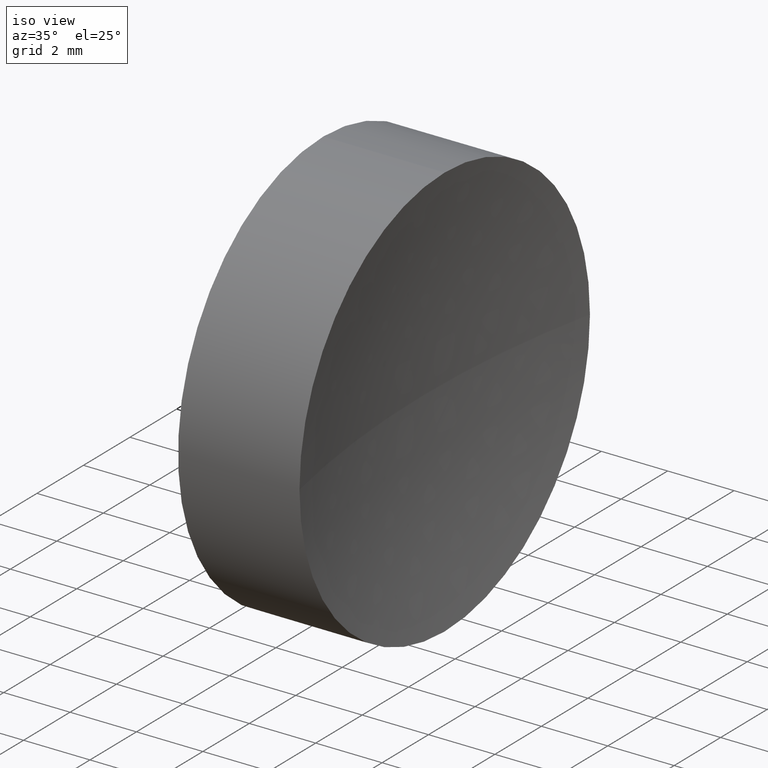
[diagram: clean part render]
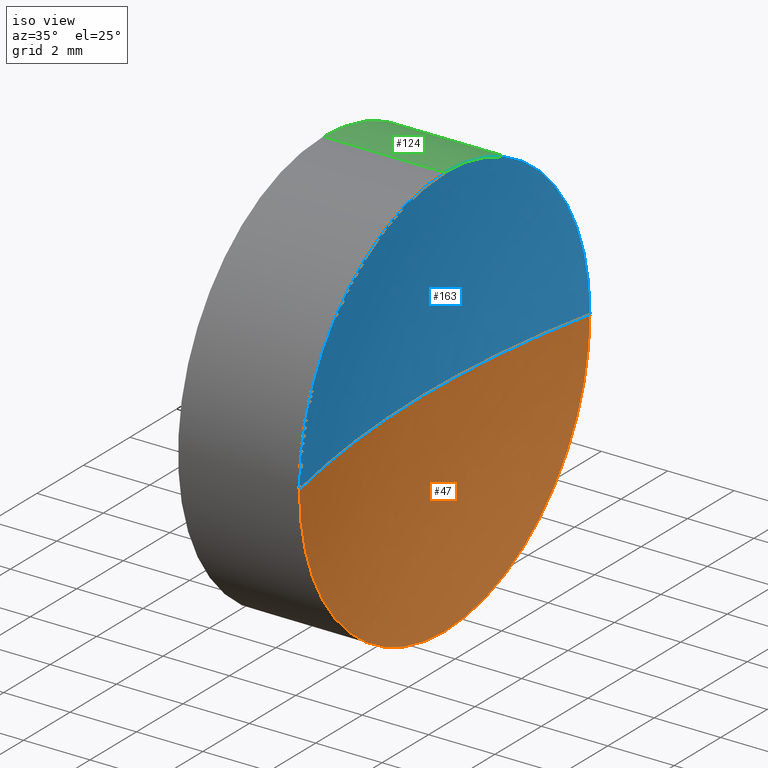
[diagram: same view with three faces highlighted in distinct colors, each labeled with its STEP entity id]
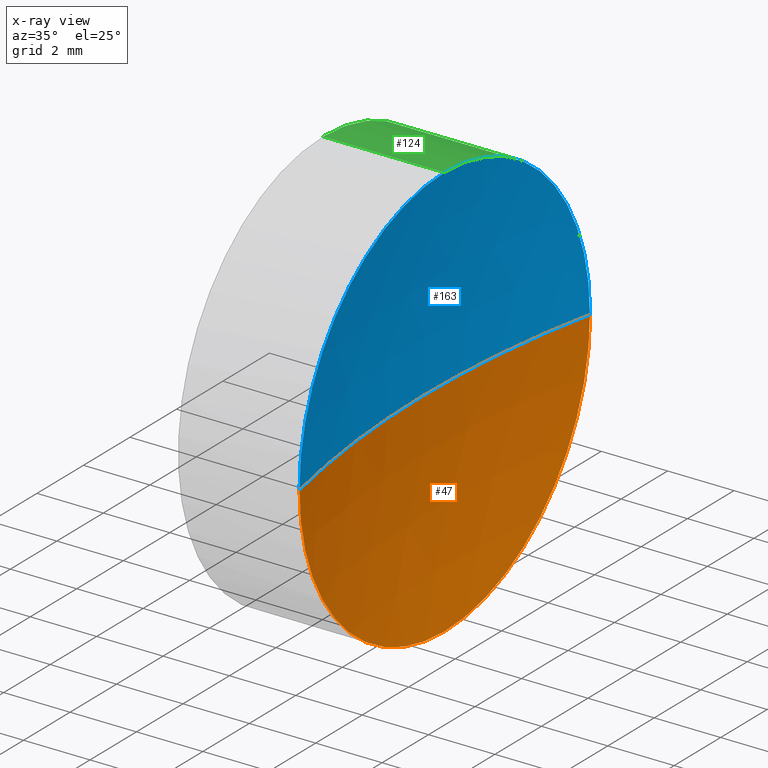
[diagram: x-ray of the same camera — body ghosted, the three highlighted faces saturated]
A machine part, iso view with three faces highlighted in distinct colors.
The next image is the same camera in x-ray (body ghosted, the three faces saturated) — at least one of them is partly hidden behind the body in this view.
Their STEP definitions:

[orange] entity #47 — the highlighted spherical surface has radius 30 mm.
#1 = CIRCLE ( 'NONE', #150, 30.00000000000000000 ) ;
#9 = EDGE_LOOP ( 'NONE', ( #41, #116, #111, #100 ) ) ;
#10 = CARTESIAN_POINT ( 'NONE',  ( 61.20459128169575500, 34.68901056168621700, 0.0000000000000000000 ) ) ;
#13 = DIRECTION ( 'NONE',  ( 0.0000000000000000000, 0.0000000000000000000, 1.000000000000000000 ) ) ;
#17 = VERTEX_POINT ( 'NONE', #120 ) ;
#19 = EDGE_CURVE ( 'NONE', #172, #46, #179, .T. ) ;
#20 = CIRCLE ( 'NONE', #141, 6.250000000000005300 ) ;
#24 = EDGE_CURVE ( 'NONE', #17, #136, #64, .T. ) ;
#28 = FACE_OUTER_BOUND ( 'NONE', #9, .T. ) ;
#41 = ORIENTED_EDGE ( 'NONE', *, *, #19, .F. ) ;
#46 = VERTEX_POINT ( 'NONE', #89 ) ;
#47 = ADVANCED_FACE ( 'NONE', ( #28 ), #95, .F. ) ;
#58 = AXIS2_PLACEMENT_3D ( 'NONE', #169, #102, #13 ) ;
#64 = CIRCLE ( 'NONE', #58, 6.250000000000005300 ) ;
#71 = EDGE_CURVE ( 'NONE', #136, #172, #20, .T. ) ;
#74 = DIRECTION ( 'NONE',  ( 0.0000000000000000000, 1.000000000000000000, 1.224646799147352700E-016 ) ) ;
#89 = CARTESIAN_POINT ( 'NONE',  ( 60.54632776745950900, 34.68901056168621000, 0.0000000000000000000 ) ) ;
#91 = DIRECTION ( 'NONE',  ( 0.0000000000000000000, 0.0000000000000000000, 1.000000000000000000 ) ) ;
#95 = SPHERICAL_SURFACE ( 'NONE', #170, 30.00000000000000000 ) ;
#98 = DIRECTION ( 'NONE',  ( 0.0000000000000000000, 0.0000000000000000000, 1.000000000000000000 ) ) ;
#100 = ORIENTED_EDGE ( 'NONE', *, *, #185, .T. ) ;
#101 = DIRECTION ( 'NONE',  ( 0.0000000000000000000, 1.224646799147353200E-016, -1.000000000000000000 ) ) ;
#102 = DIRECTION ( 'NONE',  ( -1.000000000000000000, -0.0000000000000000000, -0.0000000000000000000 ) ) ;
#111 = ORIENTED_EDGE ( 'NONE', *, *, #24, .F. ) ;
#115 = CARTESIAN_POINT ( 'NONE',  ( 90.54632776745950200, 34.68901056168621000, 0.0000000000000000000 ) ) ;
#116 = ORIENTED_EDGE ( 'NONE', *, *, #71, .F. ) ;
#118 = DIRECTION ( 'NONE',  ( 0.0000000000000000000, 1.000000000000000000, 0.0000000000000000000 ) ) ;
#120 = CARTESIAN_POINT ( 'NONE',  ( 61.20459128169575500, 40.93901056168621000, 0.0000000000000000000 ) ) ;
#121 = DIRECTION ( 'NONE',  ( -1.000000000000000000, -0.0000000000000000000, -0.0000000000000000000 ) ) ;
#125 = AXIS2_PLACEMENT_3D ( 'NONE', #133, #101, #74 ) ;
#129 = DIRECTION ( 'NONE',  ( 1.000000000000000000, 0.0000000000000000000, 0.0000000000000000000 ) ) ;
#133 = CARTESIAN_POINT ( 'NONE',  ( 90.54632776745950200, 34.68901056168621000, 0.0000000000000000000 ) ) ;
#134 = CARTESIAN_POINT ( 'NONE',  ( 61.20459128169575500, 34.68901056168621700, -6.250000000000004400 ) ) ;
#136 = VERTEX_POINT ( 'NONE', #134 ) ;
#141 = AXIS2_PLACEMENT_3D ( 'NONE', #10, #121, #91 ) ;
#148 = CARTESIAN_POINT ( 'NONE',  ( 90.54632776745950200, 34.68901056168621000, 0.0000000000000000000 ) ) ;
#150 = AXIS2_PLACEMENT_3D ( 'NONE', #148, #98, #129 ) ;
#169 = CARTESIAN_POINT ( 'NONE',  ( 61.20459128169575500, 34.68901056168621700, 0.0000000000000000000 ) ) ;
#170 = AXIS2_PLACEMENT_3D ( 'NONE', #115, #171, #118 ) ;
#171 = DIRECTION ( 'NONE',  ( 0.0000000000000000000, 0.0000000000000000000, -1.000000000000000000 ) ) ;
#172 = VERTEX_POINT ( 'NONE', #176 ) ;
#176 = CARTESIAN_POINT ( 'NONE',  ( 61.20459128169575500, 28.43901056168621700, -7.654042494670949700E-016 ) ) ;
#179 = CIRCLE ( 'NONE', #125, 30.00000000000000700 ) ;
#185 = EDGE_CURVE ( 'NONE', #17, #46, #1, .T. ) ;

[blue] entity #163 — the highlighted spherical surface has radius 30 mm.
#1 = CIRCLE ( 'NONE', #150, 30.00000000000000000 ) ;
#2 = AXIS2_PLACEMENT_3D ( 'NONE', #149, #123, #80 ) ;
#4 = EDGE_LOOP ( 'NONE', ( #72, #160, #152, #30 ) ) ;
#17 = VERTEX_POINT ( 'NONE', #120 ) ;
#19 = EDGE_CURVE ( 'NONE', #172, #46, #179, .T. ) ;
#30 = ORIENTED_EDGE ( 'NONE', *, *, #186, .F. ) ;
#39 = CARTESIAN_POINT ( 'NONE',  ( 61.20459128169575500, 34.68901056168621700, 6.250000000000004400 ) ) ;
#43 = CARTESIAN_POINT ( 'NONE',  ( 61.20459128169575500, 34.68901056168621700, 0.0000000000000000000 ) ) ;
#46 = VERTEX_POINT ( 'NONE', #89 ) ;
#51 = SPHERICAL_SURFACE ( 'NONE', #2, 30.00000000000000000 ) ;
#65 = AXIS2_PLACEMENT_3D ( 'NONE', #73, #112, #127 ) ;
#66 = DIRECTION ( 'NONE',  ( -1.000000000000000000, -0.0000000000000000000, -0.0000000000000000000 ) ) ;
#72 = ORIENTED_EDGE ( 'NONE', *, *, #94, .F. ) ;
#73 = CARTESIAN_POINT ( 'NONE',  ( 61.20459128169575500, 34.68901056168621700, 0.0000000000000000000 ) ) ;
#74 = DIRECTION ( 'NONE',  ( 0.0000000000000000000, 1.000000000000000000, 1.224646799147352700E-016 ) ) ;
#80 = DIRECTION ( 'NONE',  ( 0.0000000000000000000, 1.000000000000000000, 0.0000000000000000000 ) ) ;
#82 = AXIS2_PLACEMENT_3D ( 'NONE', #43, #66, #158 ) ;
#84 = FACE_OUTER_BOUND ( 'NONE', #4, .T. ) ;
#89 = CARTESIAN_POINT ( 'NONE',  ( 60.54632776745950900, 34.68901056168621000, 0.0000000000000000000 ) ) ;
#94 = EDGE_CURVE ( 'NONE', #172, #106, #131, .T. ) ;
#98 = DIRECTION ( 'NONE',  ( 0.0000000000000000000, 0.0000000000000000000, 1.000000000000000000 ) ) ;
#101 = DIRECTION ( 'NONE',  ( 0.0000000000000000000, 1.224646799147353200E-016, -1.000000000000000000 ) ) ;
#106 = VERTEX_POINT ( 'NONE', #39 ) ;
#112 = DIRECTION ( 'NONE',  ( -1.000000000000000000, -0.0000000000000000000, -0.0000000000000000000 ) ) ;
#120 = CARTESIAN_POINT ( 'NONE',  ( 61.20459128169575500, 40.93901056168621000, 0.0000000000000000000 ) ) ;
#123 = DIRECTION ( 'NONE',  ( 0.0000000000000000000, 0.0000000000000000000, -1.000000000000000000 ) ) ;
#125 = AXIS2_PLACEMENT_3D ( 'NONE', #133, #101, #74 ) ;
#127 = DIRECTION ( 'NONE',  ( 0.0000000000000000000, 0.0000000000000000000, 1.000000000000000000 ) ) ;
#129 = DIRECTION ( 'NONE',  ( 1.000000000000000000, 0.0000000000000000000, 0.0000000000000000000 ) ) ;
#131 = CIRCLE ( 'NONE', #82, 6.250000000000005300 ) ;
#133 = CARTESIAN_POINT ( 'NONE',  ( 90.54632776745950200, 34.68901056168621000, 0.0000000000000000000 ) ) ;
#148 = CARTESIAN_POINT ( 'NONE',  ( 90.54632776745950200, 34.68901056168621000, 0.0000000000000000000 ) ) ;
#149 = CARTESIAN_POINT ( 'NONE',  ( 90.54632776745950200, 34.68901056168621000, 0.0000000000000000000 ) ) ;
#150 = AXIS2_PLACEMENT_3D ( 'NONE', #148, #98, #129 ) ;
#152 = ORIENTED_EDGE ( 'NONE', *, *, #185, .F. ) ;
#158 = DIRECTION ( 'NONE',  ( 0.0000000000000000000, 0.0000000000000000000, 1.000000000000000000 ) ) ;
#160 = ORIENTED_EDGE ( 'NONE', *, *, #19, .T. ) ;
#163 = ADVANCED_FACE ( 'NONE', ( #84 ), #51, .F. ) ;
#172 = VERTEX_POINT ( 'NONE', #176 ) ;
#176 = CARTESIAN_POINT ( 'NONE',  ( 61.20459128169575500, 28.43901056168621700, -7.654042494670949700E-016 ) ) ;
#179 = CIRCLE ( 'NONE', #125, 30.00000000000000700 ) ;
#184 = CIRCLE ( 'NONE', #65, 6.250000000000005300 ) ;
#185 = EDGE_CURVE ( 'NONE', #17, #46, #1, .T. ) ;
#186 = EDGE_CURVE ( 'NONE', #106, #17, #184, .T. ) ;

[green] entity #124 — the highlighted cylindrical surface (partial cylindrical patch) has radius 6.25 mm, axis along (-1, -0, -0).
#12 = CARTESIAN_POINT ( 'NONE',  ( 57.54632776745975800, 34.68901056168621700, 6.249999999999998200 ) ) ;
#13 = DIRECTION ( 'NONE',  ( 0.0000000000000000000, 0.0000000000000000000, 1.000000000000000000 ) ) ;
#15 = CARTESIAN_POINT ( 'NONE',  ( 57.54632776745975800, 34.68901056168621700, -6.249999999999998200 ) ) ;
#17 = VERTEX_POINT ( 'NONE', #120 ) ;
#23 = VECTOR ( 'NONE', #29, 1000.000000000000000 ) ;
#24 = EDGE_CURVE ( 'NONE', #17, #136, #64, .T. ) ;
#29 = DIRECTION ( 'NONE',  ( -1.000000000000000000, -0.0000000000000000000, -0.0000000000000000000 ) ) ;
#31 = AXIS2_PLACEMENT_3D ( 'NONE', #40, #55, #42 ) ;
#35 = AXIS2_PLACEMENT_3D ( 'NONE', #159, #77, #173 ) ;
#37 = ORIENTED_EDGE ( 'NONE', *, *, #24, .T. ) ;
#39 = CARTESIAN_POINT ( 'NONE',  ( 61.20459128169575500, 34.68901056168621700, 6.250000000000004400 ) ) ;
#40 = CARTESIAN_POINT ( 'NONE',  ( 57.54632776745975800, 34.68901056168621700, 0.0000000000000000000 ) ) ;
#42 = DIRECTION ( 'NONE',  ( 0.0000000000000000000, 0.0000000000000000000, 1.000000000000000000 ) ) ;
#49 = EDGE_LOOP ( 'NONE', ( #37, #166, #70, #81, #69 ) ) ;
#55 = DIRECTION ( 'NONE',  ( -1.000000000000000000, -0.0000000000000000000, -0.0000000000000000000 ) ) ;
#58 = AXIS2_PLACEMENT_3D ( 'NONE', #169, #102, #13 ) ;
#62 = CYLINDRICAL_SURFACE ( 'NONE', #35, 6.250000000000001800 ) ;
#64 = CIRCLE ( 'NONE', #58, 6.250000000000005300 ) ;
#65 = AXIS2_PLACEMENT_3D ( 'NONE', #73, #112, #127 ) ;
#69 = ORIENTED_EDGE ( 'NONE', *, *, #186, .T. ) ;
#70 = ORIENTED_EDGE ( 'NONE', *, *, #122, .F. ) ;
#73 = CARTESIAN_POINT ( 'NONE',  ( 61.20459128169575500, 34.68901056168621700, 0.0000000000000000000 ) ) ;
#77 = DIRECTION ( 'NONE',  ( -1.000000000000000000, -0.0000000000000000000, -0.0000000000000000000 ) ) ;
#79 = CARTESIAN_POINT ( 'NONE',  ( 54.49257150108255100, 34.68901056168621700, -6.250000000000001800 ) ) ;
#81 = ORIENTED_EDGE ( 'NONE', *, *, #168, .F. ) ;
#102 = DIRECTION ( 'NONE',  ( -1.000000000000000000, -0.0000000000000000000, -0.0000000000000000000 ) ) ;
#103 = DIRECTION ( 'NONE',  ( -1.000000000000000000, -0.0000000000000000000, -0.0000000000000000000 ) ) ;
#106 = VERTEX_POINT ( 'NONE', #39 ) ;
#108 = CIRCLE ( 'NONE', #31, 6.249999999999998200 ) ;
#112 = DIRECTION ( 'NONE',  ( -1.000000000000000000, -0.0000000000000000000, -0.0000000000000000000 ) ) ;
#120 = CARTESIAN_POINT ( 'NONE',  ( 61.20459128169575500, 40.93901056168621000, 0.0000000000000000000 ) ) ;
#122 = EDGE_CURVE ( 'NONE', #161, #178, #108, .T. ) ;
#124 = ADVANCED_FACE ( 'NONE', ( #155 ), #62, .T. ) ;
#127 = DIRECTION ( 'NONE',  ( 0.0000000000000000000, 0.0000000000000000000, 1.000000000000000000 ) ) ;
#128 = LINE ( 'NONE', #79, #23 ) ;
#134 = CARTESIAN_POINT ( 'NONE',  ( 61.20459128169575500, 34.68901056168621700, -6.250000000000004400 ) ) ;
#136 = VERTEX_POINT ( 'NONE', #134 ) ;
#139 = EDGE_CURVE ( 'NONE', #136, #178, #128, .T. ) ;
#151 = CARTESIAN_POINT ( 'NONE',  ( 54.49257150108255100, 34.68901056168621700, 6.250000000000001800 ) ) ;
#154 = LINE ( 'NONE', #151, #181 ) ;
#155 = FACE_OUTER_BOUND ( 'NONE', #49, .T. ) ;
#159 = CARTESIAN_POINT ( 'NONE',  ( 54.49257150108255100, 34.68901056168621700, 0.0000000000000000000 ) ) ;
#161 = VERTEX_POINT ( 'NONE', #12 ) ;
#166 = ORIENTED_EDGE ( 'NONE', *, *, #139, .T. ) ;
#168 = EDGE_CURVE ( 'NONE', #106, #161, #154, .T. ) ;
#169 = CARTESIAN_POINT ( 'NONE',  ( 61.20459128169575500, 34.68901056168621700, 0.0000000000000000000 ) ) ;
#173 = DIRECTION ( 'NONE',  ( 0.0000000000000000000, 0.0000000000000000000, 1.000000000000000000 ) ) ;
#178 = VERTEX_POINT ( 'NONE', #15 ) ;
#181 = VECTOR ( 'NONE', #103, 1000.000000000000000 ) ;
#184 = CIRCLE ( 'NONE', #65, 6.250000000000005300 ) ;
#186 = EDGE_CURVE ( 'NONE', #106, #17, #184, .T. ) ;